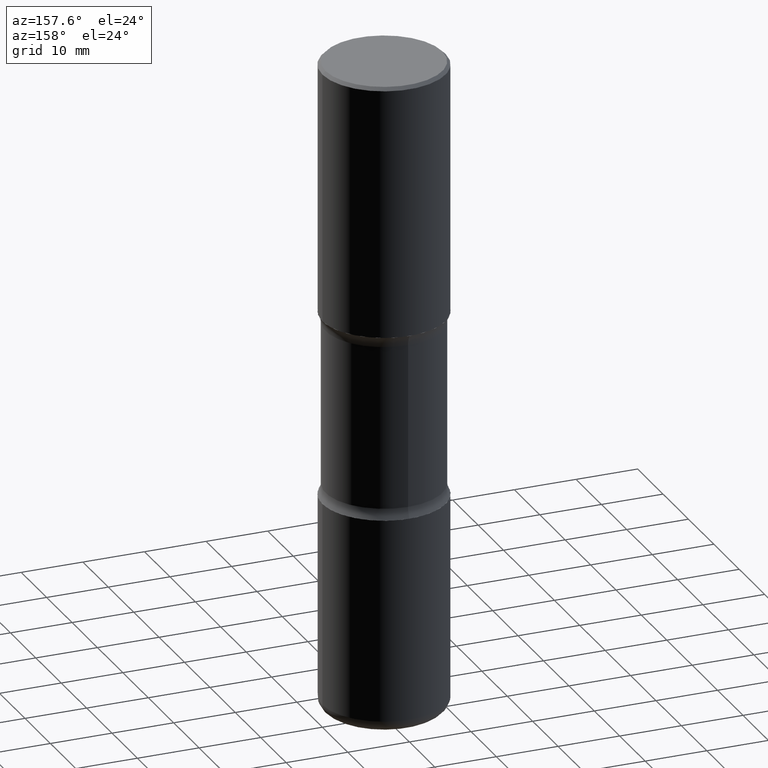
[diagram: clean part render]
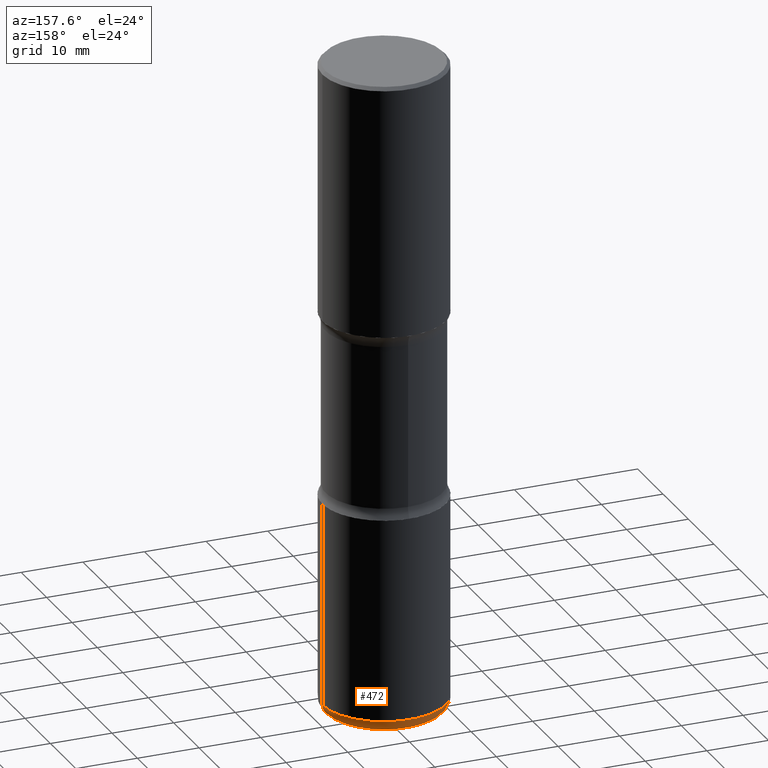
[diagram: same view with one face highlighted and labeled with its STEP entity id]
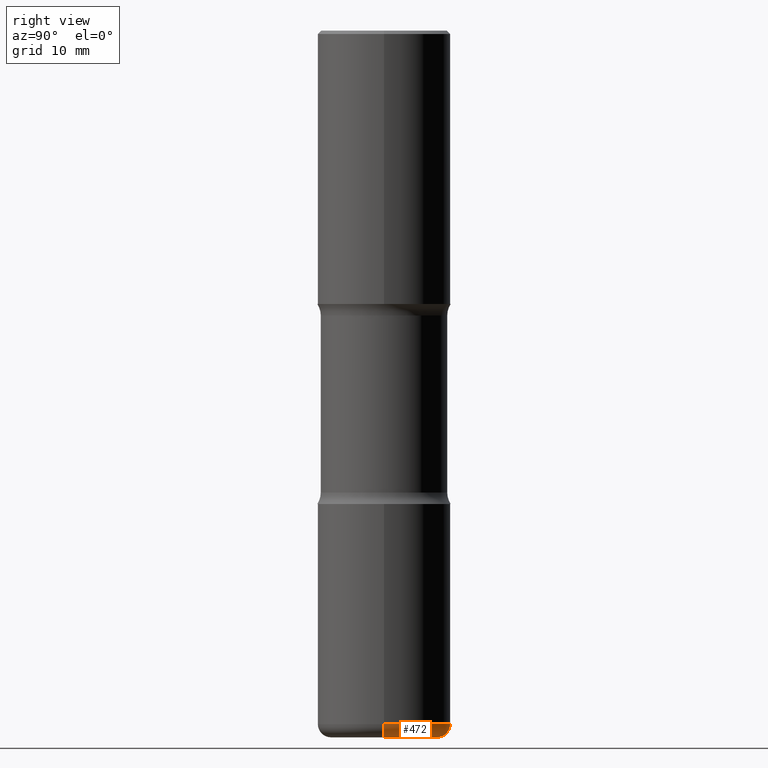
[diagram: same view with one face highlighted and labeled with its STEP entity id]
A machine part, auxiliary view. The second image highlights one B-rep face of the part: STEP entity #472.
A second angle (right view) of the same face is appended — the face is thin or edge-on in the first view.
In plain terms, the highlighted toroidal blend (fillet) surface has major radius 8.001 mm and minor (blend) radius 1.999 mm.
Its self-contained STEP definition (entity closure, byte-faithful):
#24 = DIRECTION ( 'NONE',  ( 7.105427357601001859E-15, 1.000000000000000000, -3.491481338843145583E-15 ) ) ;
#30 = ORIENTED_EDGE ( 'NONE', *, *, #335, .F. ) ;
#36 = ORIENTED_EDGE ( 'NONE', *, *, #43, .T. ) ;
#43 = EDGE_CURVE ( 'NONE', #68, #220, #201, .T. ) ;
#44 = EDGE_LOOP ( 'NONE', ( #36, #197, #467, #30 ) ) ;
#52 = DIRECTION ( 'NONE',  ( 1.000000000000000000, -6.982962677686264344E-15, 0.000000000000000000 ) ) ;
#55 = CARTESIAN_POINT ( 'NONE',  ( 0.3150000000000001688, -1.677028316673138822E-14, -4.173199999999999577 ) ) ;
#62 = CARTESIAN_POINT ( 'NONE',  ( 1.001297202692504215E-28, -1.429587034189326149E-14, -4.094500000000000028 ) ) ;
#68 = VERTEX_POINT ( 'NONE', #55 ) ;
#72 = DIRECTION ( 'NONE',  ( -2.445468806185136597E-29, 3.491481338843145583E-15, 1.000000000000000000 ) ) ;
#111 = DIRECTION ( 'NONE',  ( -1.000000000000000000, 7.105427357600995548E-15, 0.000000000000000000 ) ) ;
#122 = CARTESIAN_POINT ( 'NONE',  ( 0.3937000000000001054, -1.704506274809834471E-14, -4.094500000000000028 ) ) ;
#141 = AXIS2_PLACEMENT_3D ( 'NONE', #62, #538, #146 ) ;
#143 = DIRECTION ( 'NONE',  ( -2.445468806185136597E-29, 3.491481338843145583E-15, 1.000000000000000000 ) ) ;
#146 = DIRECTION ( 'NONE',  ( 1.000000000000000000, -6.982962677686265922E-15, 4.883557194083112340E-29 ) ) ;
#185 = EDGE_CURVE ( 'NONE', #547, #559, #512, .T. ) ;
#197 = ORIENTED_EDGE ( 'NONE', *, *, #398, .T. ) ;
#201 = CIRCLE ( 'NONE', #297, 0.3150000000000001688 ) ;
#206 = CARTESIAN_POINT ( 'NONE',  ( -0.3937000000000001054, -1.149846359120574434E-14, -4.094500000000000028 ) ) ;
#220 = VERTEX_POINT ( 'NONE', #303 ) ;
#224 = FACE_OUTER_BOUND ( 'NONE', #44, .T. ) ;
#235 = AXIS2_PLACEMENT_3D ( 'NONE', #486, #24, #111 ) ;
#237 = DIRECTION ( 'NONE',  ( 1.000000000000000000, -6.982962677686265133E-15, 0.000000000000000000 ) ) ;
#240 = DIRECTION ( 'NONE',  ( -6.982962677686266711E-15, -1.000000000000000000, 3.491481338843145583E-15 ) ) ;
#251 = CIRCLE ( 'NONE', #412, 0.07869999999999970075 ) ;
#284 = DIRECTION ( 'NONE',  ( 1.000000000000000000, -6.982962677686271444E-15, 0.000000000000000000 ) ) ;
#297 = AXIS2_PLACEMENT_3D ( 'NONE', #434, #143, #52 ) ;
#303 = CARTESIAN_POINT ( 'NONE',  ( -0.3150000000000001688, -1.191545194841082041E-14, -4.173199999999999577 ) ) ;
#305 = AXIS2_PLACEMENT_3D ( 'NONE', #449, #72, #237 ) ;
#332 = TOROIDAL_SURFACE ( 'NONE', #141, 0.3150000000000001688, 0.07869999999999970075 ) ;
#335 = EDGE_CURVE ( 'NONE', #68, #547, #251, .T. ) ;
#398 = EDGE_CURVE ( 'NONE', #220, #559, #532, .T. ) ;
#412 = AXIS2_PLACEMENT_3D ( 'NONE', #448, #240, #284 ) ;
#434 = CARTESIAN_POINT ( 'NONE',  ( 1.020543042197181255E-28, -1.457064992326021168E-14, -4.173199999999999577 ) ) ;
#448 = CARTESIAN_POINT ( 'NONE',  ( 0.3150000000000001688, -1.649550358536443803E-14, -4.094500000000000028 ) ) ;
#449 = CARTESIAN_POINT ( 'NONE',  ( 1.001297202692504215E-28, -1.429587034189326149E-14, -4.094500000000000028 ) ) ;
#467 = ORIENTED_EDGE ( 'NONE', *, *, #185, .F. ) ;
#472 = ADVANCED_FACE ( 'NONE', ( #224 ), #332, .T. ) ;
#486 = CARTESIAN_POINT ( 'NONE',  ( -0.3150000000000001688, -1.205766072424894313E-14, -4.094500000000000028 ) ) ;
#512 = CIRCLE ( 'NONE', #305, 0.3937000000000002164 ) ;
#532 = CIRCLE ( 'NONE', #235, 0.07869999999999970075 ) ;
#538 = DIRECTION ( 'NONE',  ( -2.445468806185136597E-29, 3.491481338843145583E-15, 1.000000000000000000 ) ) ;
#547 = VERTEX_POINT ( 'NONE', #122 ) ;
#559 = VERTEX_POINT ( 'NONE', #206 ) ;